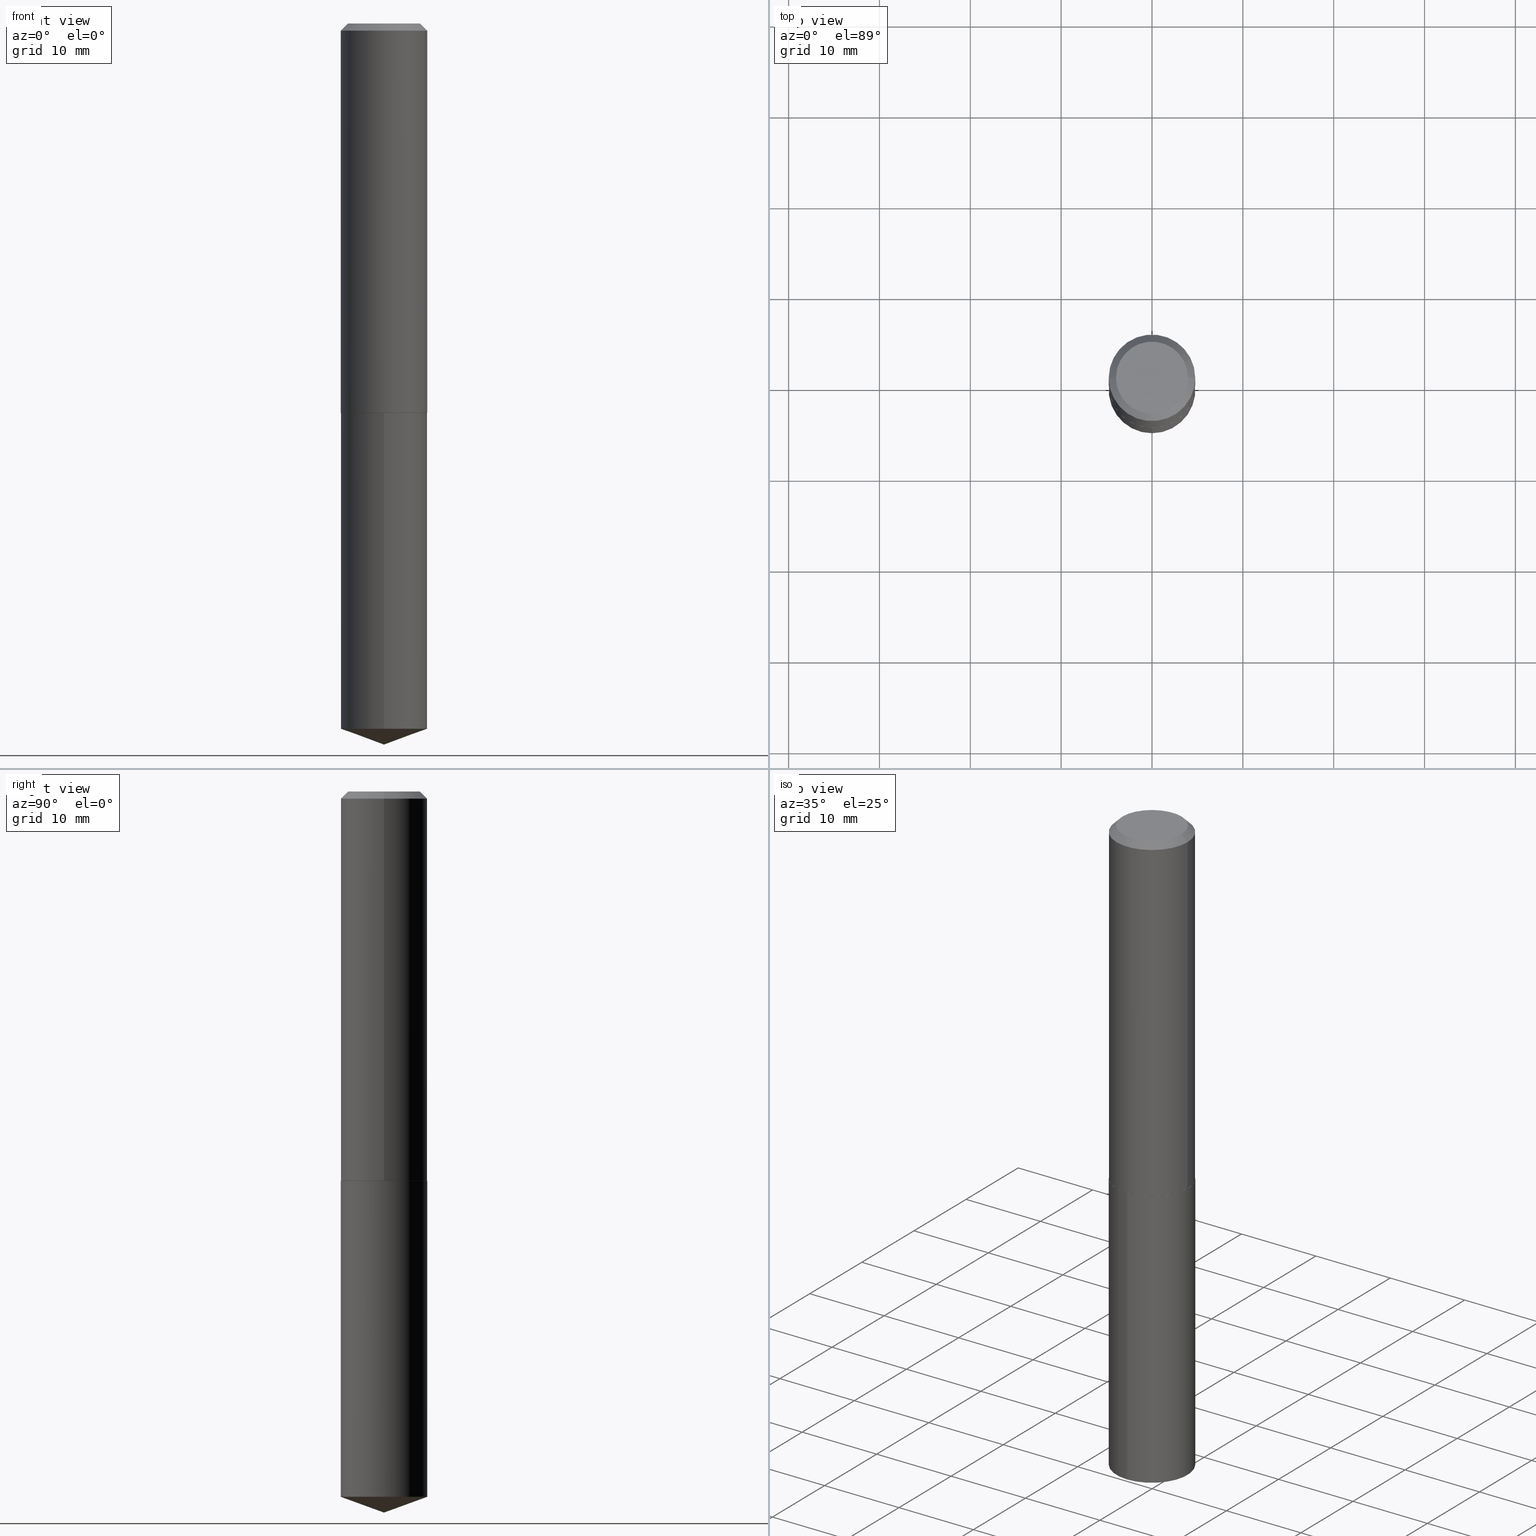
[diagram: canonical four-view strip — front | top / right | iso, engineering-drawing reading convention]
A machine part, canonical four-view strip (front | top / right | iso — engineering-drawing reading convention). The complete STEP part file that produces these views, byte-faithful:
ISO-10303-21;
HEADER;
FILE_DESCRIPTION (( 'STEP AP203' ),
    '1' );
FILE_NAME ('56156.STEP',
    '2024-04-22T20:48:24',
    ( '' ),
    ( '' ),
    'SwSTEP 2.0',
    'SolidWorks 2023',
    '' );
FILE_SCHEMA (( 'CONFIG_CONTROL_DESIGN' ));
ENDSEC;

DATA;
#1 = CARTESIAN_POINT ( 'NONE',  ( 7.642819744381336076E-29, -1.090984397979521079E-14, -3.125000000000000000 ) ) ;
#2 = EDGE_LOOP ( 'NONE', ( #171, #67, #100, #281 ) ) ;
#3 = DIRECTION ( 'NONE',  ( 6.676917655467972862E-15, 0.9396926207859103153, 0.3420201433256634393 ) ) ;
#4 = CIRCLE ( 'NONE', #133, 0.1875000000000002498 ) ;
#5 = ORIENTED_EDGE ( 'NONE', *, *, #373, .T. ) ;
#6 = APPLICATION_CONTEXT ( 'configuration controlled 3d designs of mechanical parts and assemblies' ) ;
#7 = DIRECTION ( 'NONE',  ( 1.000000000000000000, -6.982962677686265922E-15, 0.000000000000000000 ) ) ;
#8 = FACE_OUTER_BOUND ( 'NONE', #275, .T. ) ;
#9 = ORIENTED_EDGE ( 'NONE', *, *, #45, .T. ) ;
#10 = CONICAL_SURFACE ( 'NONE', #39, 108.1684023407338913, 1.221730476396032827 ) ;
#11 = PERSON_AND_ORGANIZATION_ROLE ( 'design_supplier' ) ;
#12 = VERTEX_POINT ( 'NONE', #233 ) ;
#13 = DATE_AND_TIME ( #228, #372 ) ;
#14 = LINE ( 'NONE', #19, #235 ) ;
#15 = EDGE_LOOP ( 'NONE', ( #181, #217, #43 ) ) ;
#16 = AXIS2_PLACEMENT_3D ( 'NONE', #124, #211, #327 ) ;
#17 = APPROVAL ( #145, 'UNSPECIFIED' ) ;
#18 = PERSON ( 'UNSPECIFIED', 'UNSPECIFIED', 'UNSPECIFIED', ('UNSPECIFIED'), ('UNSPECIFIED'), ('UNSPECIFIED') ) ;
#19 = CARTESIAN_POINT ( 'NONE',  ( 0.1875000000000000278, -1.395452166421011466E-15, -0.03125000000000022204 ) ) ;
#20 = ORIENTED_EDGE ( 'NONE', *, *, #163, .T. ) ;
#21 = PERSON_AND_ORGANIZATION ( #18, #57 ) ;
#22 = CYLINDRICAL_SURFACE ( 'NONE', #319, 0.1875000000000000278 ) ;
#23 = DATE_TIME_ROLE ( 'classification_date' ) ;
#24 = DIRECTION ( 'NONE',  ( -2.445700127513827662E-29, 3.491150073534467548E-15, 1.000000000000000000 ) ) ;
#25 = AXIS2_PLACEMENT_3D ( 'NONE', #278, #192, #363 ) ;
#26 = LINE ( 'NONE', #154, #294 ) ;
#27 = CARTESIAN_POINT ( 'NONE',  ( 4.126728610437419128E-29, -5.891874759297809625E-15, -1.687500000000000444 ) ) ;
#28 = PERSON_AND_ORGANIZATION ( #18, #57 ) ;
#29 = DIRECTION ( 'NONE',  ( 1.000000000000000000, -6.982962677686266711E-15, 4.876166487936958658E-29 ) ) ;
#30 = CIRCLE ( 'NONE', #125, 0.1875000000000002498 ) ;
#31 = DIRECTION ( 'NONE',  ( 0.7071067811863543939, -2.468850131080234027E-15, 0.7071067811867406405 ) ) ;
#32 = ADVANCED_FACE ( 'NONE', ( #325 ), #354, .T. ) ;
#33 = CARTESIAN_POINT ( 'NONE',  ( -1.309305502066100264E-15, -0.1875000000000106581, -3.056755581075087047 ) ) ;
#34 = EDGE_LOOP ( 'NONE', ( #258, #260, #139 ) ) ;
#35 = PRODUCT_RELATED_PRODUCT_CATEGORY ( 'detail', '', ( #49 ) ) ;
#36 = FACE_OUTER_BOUND ( 'NONE', #15, .T. ) ;
#37 = CLOSED_SHELL ( 'NONE', ( #279, #32, #205, #300, #345, #53, #63, #59 ) ) ;
#38 = LINE ( 'NONE', #93, #191 ) ;
#39 = AXIS2_PLACEMENT_3D ( 'NONE', #222, #195, #160 ) ;
#40 = CARTESIAN_POINT ( 'NONE',  ( -1.309305502066133790E-15, -0.1875000000000059119, -1.687499999999999778 ) ) ;
#41 = EDGE_LOOP ( 'NONE', ( #80, #20, #343, #287 ) ) ;
#42 = PERSON_AND_ORGANIZATION ( #18, #57 ) ;
#43 = ORIENTED_EDGE ( 'NONE', *, *, #285, .F. ) ;
#44 = APPROVAL_PERSON_ORGANIZATION ( #21, #376, #208 ) ;
#45 = EDGE_CURVE ( 'NONE', #114, #337, #293, .T. ) ;
#46 =( LENGTH_UNIT ( ) NAMED_UNIT ( * ) SI_UNIT ( $, .METRE. ) );
#47 = CC_DESIGN_PERSON_AND_ORGANIZATION_ASSIGNMENT ( #286, #11, ( #307 ) ) ;
#48 = VERTEX_POINT ( 'NONE', #156 ) ;
#49 = PRODUCT ( '56156', '56156', '', ( #262 ) ) ;
#50 = DATE_TIME_ROLE ( 'creation_date' ) ;
#51 = EDGE_LOOP ( 'NONE', ( #94, #378 ) ) ;
#52 = ORIENTED_EDGE ( 'NONE', *, *, #379, .T. ) ;
#53 = ADVANCED_FACE ( 'NONE', ( #386 ), #91, .T. ) ;
#54 = DIRECTION ( 'NONE',  ( 2.445468806185136597E-29, -3.491481338843145583E-15, -1.000000000000000000 ) ) ;
#55 = DIRECTION ( 'NONE',  ( -1.000000000000000000, 6.982962677686265922E-15, -4.876176775795935793E-29 ) ) ;
#56 = AXIS2_PLACEMENT_3D ( 'NONE', #292, #54, #355 ) ;
#57 = ORGANIZATION ( 'UNSPECIFIED', 'UNSPECIFIED', '' ) ;
#58 = APPROVAL_PERSON_ORGANIZATION ( #341, #17, #315 ) ;
#59 = ADVANCED_FACE ( 'NONE', ( #349 ), #236, .F. ) ;
#60 = DIRECTION ( 'NONE',  ( -2.445468806185136597E-29, 3.491481338843145583E-15, 1.000000000000000000 ) ) ;
#61 = CALENDAR_DATE ( 2024, 22, 4 ) ;
#62 = DIRECTION ( 'NONE',  ( -6.982962677686265922E-15, -1.000000000000000000, 2.913971193241880372E-15 ) ) ;
#63 = ADVANCED_FACE ( 'NONE', ( #384 ), #112, .T. ) ;
#64 = DIRECTION ( 'NONE',  ( -6.561838499445205585E-15, -0.9396926207859079838, 0.3420201433256699897 ) ) ;
#65 = EDGE_CURVE ( 'NONE', #224, #131, #119, .T. ) ;
#66 = CARTESIAN_POINT ( 'NONE',  ( 0.1875000000000001110, -1.309305502066175797E-15, 9.142831454617385217E-30 ) ) ;
#67 = ORIENTED_EDGE ( 'NONE', *, *, #122, .T. ) ;
#68 = FACE_OUTER_BOUND ( 'NONE', #34, .T. ) ;
#69 = CARTESIAN_POINT ( 'NONE',  ( -0.1870000000000003604, -4.560510616252309896E-15, -1.687500000000000444 ) ) ;
#70 = ORIENTED_EDGE ( 'NONE', *, *, #117, .F. ) ;
#71 = VECTOR ( 'NONE', #271, 39.37007874015748143 ) ;
#72 = CARTESIAN_POINT ( 'NONE',  ( 7.642090019328606165E-31, -1.091087918388490760E-16, -0.03125000000000022204 ) ) ;
#73 = EDGE_LOOP ( 'NONE', ( #137, #250, #116, #5 ) ) ;
#74 = COORDINATED_UNIVERSAL_TIME_OFFSET ( 5, 0, .BEHIND. ) ;
#75 =( NAMED_UNIT ( * ) PLANE_ANGLE_UNIT ( ) SI_UNIT ( $, .RADIAN. ) );
#76 = SECURITY_CLASSIFICATION ( '', '', #368 ) ;
#77 = ADVANCED_BREP_SHAPE_REPRESENTATION ( '56156', ( #335, #342, #277 ), #265 ) ;
#78 = CC_DESIGN_PERSON_AND_ORGANIZATION_ASSIGNMENT ( #42, #173, ( #307 ) ) ;
#79 = ORIENTED_EDGE ( 'NONE', *, *, #213, .F. ) ;
#80 = ORIENTED_EDGE ( 'NONE', *, *, #237, .T. ) ;
#81 = AXIS2_PLACEMENT_3D ( 'NONE', #97, #244, #302 ) ;
#82 = SHAPE_DEFINITION_REPRESENTATION ( #143, #77 ) ;
#83 = CARTESIAN_POINT ( 'NONE',  ( 0.1562500000000000000, -1.233702489286406538E-15, 9.552245033430668582E-19 ) ) ;
#84 = PLANE ( 'NONE',  #306 ) ;
#85 = PERSON_AND_ORGANIZATION_ROLE ( 'classification_officer' ) ;
#86 = LINE ( 'NONE', #214, #71 ) ;
#87 = CIRCLE ( 'NONE', #371, 0.1870000000000003604 ) ;
#88 = VECTOR ( 'NONE', #64, 39.37007874015748854 ) ;
#89 = CC_DESIGN_PERSON_AND_ORGANIZATION_ASSIGNMENT ( #207, #111, ( #49 ) ) ;
#90 = DATE_AND_TIME ( #61, #153 ) ;
#91 = CYLINDRICAL_SURFACE ( 'NONE', #284, 0.1875000000000001110 ) ;
#92 = CARTESIAN_POINT ( 'NONE',  ( 4.126728610437418568E-29, -5.891874759297808836E-15, -1.687500000000000222 ) ) ;
#93 = CARTESIAN_POINT ( 'NONE',  ( -0.1875000000000000278, 1.200196710227325908E-15, -0.03125000000000022204 ) ) ;
#94 = ORIENTED_EDGE ( 'NONE', *, *, #135, .T. ) ;
#95 = AXIS2_PLACEMENT_3D ( 'NONE', #162, #360, #99 ) ;
#96 = LOCAL_TIME ( 16, 48, 24.00000000000000000, #385 ) ;
#97 = CARTESIAN_POINT ( 'NONE',  ( 7.475517159671779799E-29, -1.067215148185558012E-14, -3.056755581075087491 ) ) ;
#98 = ORIENTED_EDGE ( 'NONE', *, *, #333, .T. ) ;
#99 = DIRECTION ( 'NONE',  ( -6.982962677686265922E-15, -1.000000000000000000, 3.475157955500706409E-15 ) ) ;
#100 = ORIENTED_EDGE ( 'NONE', *, *, #237, .F. ) ;
#101 = EDGE_CURVE ( 'NONE', #109, #198, #87, .T. ) ;
#102 = DIRECTION ( 'NONE',  ( 1.000000000000000000, -6.982962677686266711E-15, 4.876166487936958658E-29 ) ) ;
#103 = DIRECTION ( 'NONE',  ( -2.445468806185136597E-29, 3.491481338843145583E-15, 1.000000000000000000 ) ) ;
#104 = ORIENTED_EDGE ( 'NONE', *, *, #311, .T. ) ;
#105 = COORDINATED_UNIVERSAL_TIME_OFFSET ( 5, 0, .BEHIND. ) ;
#106 = EDGE_LOOP ( 'NONE', ( #309, #52, #344, #79 ) ) ;
#107 = ADVANCED_FACE ( 'NONE', ( #296 ), #84, .F. ) ;
#108 =( NAMED_UNIT ( * ) SI_UNIT ( $, .STERADIAN. ) SOLID_ANGLE_UNIT ( ) );
#109 = VERTEX_POINT ( 'NONE', #298 ) ;
#110 = PRODUCT_DEFINITION ( 'UNKNOWN', '', #307, #196 ) ;
#111 = PERSON_AND_ORGANIZATION_ROLE ( 'design_owner' ) ;
#112 = CONICAL_SURFACE ( 'NONE', #56, 0.1875000000000000278, 0.7853981633974449483 ) ;
#113 = APPROVAL_DATE_TIME ( #256, #167 ) ;
#114 = VERTEX_POINT ( 'NONE', #83 ) ;
#115 = PERSON_AND_ORGANIZATION ( #18, #57 ) ;
#116 = ORIENTED_EDGE ( 'NONE', *, *, #213, .T. ) ;
#117 = EDGE_CURVE ( 'NONE', #198, #109, #351, .T. ) ;
#118 = CARTESIAN_POINT ( 'NONE',  ( 4.126728610437418568E-29, -5.891874759297808836E-15, -1.687500000000000222 ) ) ;
#119 = CIRCLE ( 'NONE', #164, 0.1875000000000000278 ) ;
#120 = DATE_AND_TIME ( #388, #96 ) ;
#121 = CARTESIAN_POINT ( 'NONE',  ( 4.126728610437418568E-29, -5.891874759297808836E-15, -1.687500000000000222 ) ) ;
#122 = EDGE_CURVE ( 'NONE', #198, #48, #86, .T. ) ;
#123 = CARTESIAN_POINT ( 'NONE',  ( -2.335971725809281832E-47, 3.335148527799649409E-33, 9.552245033349382783E-19 ) ) ;
#124 = CARTESIAN_POINT ( 'NONE',  ( 4.126728610437418568E-29, -5.891874759297808836E-15, -1.687500000000000222 ) ) ;
#125 = AXIS2_PLACEMENT_3D ( 'NONE', #136, #249, #332 ) ;
#126 = DIRECTION ( 'NONE',  ( -2.445700127513827662E-29, 3.491150073534467548E-15, 1.000000000000000000 ) ) ;
#127 = EDGE_CURVE ( 'NONE', #12, #375, #329, .T. ) ;
#128 = CARTESIAN_POINT ( 'NONE',  ( 0.1875000000000002498, -7.199434520694564708E-15, -1.687000000000000277 ) ) ;
#129 = ORIENTED_EDGE ( 'NONE', *, *, #290, .T. ) ;
#130 = CARTESIAN_POINT ( 'NONE',  ( 1.332267629550228869E-15, 0.1874999999999941158, -1.687500000000000888 ) ) ;
#131 = VERTEX_POINT ( 'NONE', #326 ) ;
#132 = AXIS2_PLACEMENT_3D ( 'NONE', #210, #267, #389 ) ;
#133 = AXIS2_PLACEMENT_3D ( 'NONE', #334, #223, #197 ) ;
#134 = DIRECTION ( 'NONE',  ( 1.000000000000000000, -6.982962677686269077E-15, 0.000000000000000000 ) ) ;
#135 = EDGE_CURVE ( 'NONE', #375, #12, #172, .T. ) ;
#136 = CARTESIAN_POINT ( 'NONE',  ( 4.125505876034326327E-29, -5.890129018628388122E-15, -1.687000000000000277 ) ) ;
#137 = ORIENTED_EDGE ( 'NONE', *, *, #379, .F. ) ;
#138 = CARTESIAN_POINT ( 'NONE',  ( 4.125505876034326327E-29, -5.890129018628388122E-15, -1.687000000000000277 ) ) ;
#139 = ORIENTED_EDGE ( 'NONE', *, *, #65, .F. ) ;
#140 = CIRCLE ( 'NONE', #81, 0.1875000000000000278 ) ;
#141 = APPROVAL_ROLE ( '' ) ;
#142 = ORIENTED_EDGE ( 'NONE', *, *, #127, .F. ) ;
#143 = PRODUCT_DEFINITION_SHAPE ( 'NONE', 'NONE',  #110 ) ;
#144 = APPROVAL_DATE_TIME ( #201, #17 ) ;
#145 = APPROVAL_STATUS ( 'not_yet_approved' ) ;
#146 = AXIS2_PLACEMENT_3D ( 'NONE', #123, #60, #29 ) ;
#147 = LENGTH_MEASURE_WITH_UNIT ( LENGTH_MEASURE( 0.02539999999999999897 ), #46 );
#148 = VECTOR ( 'NONE', #168, 39.37007874015748143 ) ;
#149 = AXIS2_PLACEMENT_3D ( 'NONE', #336, #301, #134 ) ;
#150 =( CONVERSION_BASED_UNIT ( 'INCH', #147 ) LENGTH_UNIT ( ) NAMED_UNIT ( #221 ) );
#151 = DIRECTION ( 'NONE',  ( -2.445700127513827662E-29, 3.491150073534467548E-15, 1.000000000000000000 ) ) ;
#152 = CARTESIAN_POINT ( 'NONE',  ( 4.126728610437418568E-29, -5.891874759297808836E-15, -1.687500000000000222 ) ) ;
#153 = LOCAL_TIME ( 16, 48, 24.00000000000000000, #185 ) ;
#154 = CARTESIAN_POINT ( 'NONE',  ( -0.1875000000000001110, 1.332267629550188637E-15, -9.223003294227953596E-30 ) ) ;
#155 = CC_DESIGN_PERSON_AND_ORGANIZATION_ASSIGNMENT ( #28, #85, ( #76 ) ) ;
#156 = CARTESIAN_POINT ( 'NONE',  ( -0.1875000000000002498, -4.557861389078198695E-15, -1.687000000000000277 ) ) ;
#157 = DIRECTION ( 'NONE',  ( -2.445700127513827662E-29, 3.491150073534467548E-15, 1.000000000000000000 ) ) ;
#158 = APPROVAL_PERSON_ORGANIZATION ( #115, #167, #141 ) ;
#159 = CARTESIAN_POINT ( 'NONE',  ( -0.1875000000000000278, -1.667351275683429579E-15, -0.03125000000000022204 ) ) ;
#160 = DIRECTION ( 'NONE',  ( -6.982962677686265922E-15, -1.000000000000000000, 3.475157955500706409E-15 ) ) ;
#161 = ORIENTED_EDGE ( 'NONE', *, *, #117, .T. ) ;
#162 = CARTESIAN_POINT ( 'NONE',  ( -8.864498405129403874E-28, 1.265364502987549579E-13, 36.24507874015748143 ) ) ;
#163 = EDGE_CURVE ( 'NONE', #48, #283, #26, .T. ) ;
#164 = AXIS2_PLACEMENT_3D ( 'NONE', #297, #157, #239 ) ;
#165 = CC_DESIGN_APPROVAL ( #167, ( #110 ) ) ;
#166 = CARTESIAN_POINT ( 'NONE',  ( 7.642090019328606165E-31, -1.091087918388490760E-16, -0.03125000000000022204 ) ) ;
#167 = APPROVAL ( #288, 'UNSPECIFIED' ) ;
#168 = DIRECTION ( 'NONE',  ( -2.445700127513827662E-29, 3.491150073534467548E-15, 1.000000000000000000 ) ) ;
#169 = EDGE_LOOP ( 'NONE', ( #362, #253, #98, #142 ) ) ;
#170 = DIRECTION ( 'NONE',  ( -2.445468806185136597E-29, 3.491481338843145583E-15, 1.000000000000000000 ) ) ;
#171 = ORIENTED_EDGE ( 'NONE', *, *, #101, .T. ) ;
#172 = CIRCLE ( 'NONE', #272, 0.1875000000000000278 ) ;
#173 = PERSON_AND_ORGANIZATION_ROLE ( 'creator' ) ;
#174 = ORIENTED_EDGE ( 'NONE', *, *, #101, .F. ) ;
#175 = CARTESIAN_POINT ( 'NONE',  ( 0.000000000000000000, 0.000000000000000000, 0.000000000000000000 ) ) ;
#176 = ORIENTED_EDGE ( 'NONE', *, *, #333, .F. ) ;
#177 = DIRECTION ( 'NONE',  ( 1.000000000000000000, 0.000000000000000000, 0.000000000000000000 ) ) ;
#178 = ORIENTED_EDGE ( 'NONE', *, *, #135, .F. ) ;
#179 = ADVANCED_FACE ( 'NONE', ( #380 ), #212, .T. ) ;
#180 = AXIS2_PLACEMENT_3D ( 'NONE', #166, #220, #273 ) ;
#181 = ORIENTED_EDGE ( 'NONE', *, *, #203, .F. ) ;
#182 = EDGE_CURVE ( 'NONE', #316, #224, #189, .T. ) ;
#183 = APPROVAL_STATUS ( 'not_yet_approved' ) ;
#184 = DIRECTION ( 'NONE',  ( -6.982962677686265922E-15, -1.000000000000000000, 2.913971193241880372E-15 ) ) ;
#185 = COORDINATED_UNIVERSAL_TIME_OFFSET ( 5, 0, .BEHIND. ) ;
#186 = DIRECTION ( 'NONE',  ( -2.445468806185136597E-29, 3.491481338843145583E-15, 1.000000000000000000 ) ) ;
#187 = VECTOR ( 'NONE', #190, 39.37007874015748143 ) ;
#188 = CARTESIAN_POINT ( 'NONE',  ( -1.167985862904640916E-47, 1.667574263899824705E-33, 4.776122516674691392E-19 ) ) ;
#189 = LINE ( 'NONE', #242, #88 ) ;
#190 = DIRECTION ( 'NONE',  ( -2.445700127513827662E-29, 3.491150073534467548E-15, 1.000000000000000000 ) ) ;
#191 = VECTOR ( 'NONE', #251, 39.37007874015748143 ) ;
#192 = DIRECTION ( 'NONE',  ( -2.438088387897960049E-29, 3.491481338843145188E-15, 1.000000000000000000 ) ) ;
#193 = ORIENTED_EDGE ( 'NONE', *, *, #65, .T. ) ;
#194 = ADVANCED_FACE ( 'NONE', ( #291 ), #22, .T. ) ;
#195 = DIRECTION ( 'NONE',  ( -2.445700127513827662E-29, 3.491150073534467548E-15, 1.000000000000000000 ) ) ;
#196 = DESIGN_CONTEXT ( 'detailed design', #232, 'design' ) ;
#197 = DIRECTION ( 'NONE',  ( 1.000000000000000000, -6.982962677686269077E-15, 0.000000000000000000 ) ) ;
#198 = VERTEX_POINT ( 'NONE', #69 ) ;
#199 = VECTOR ( 'NONE', #3, 39.37007874015748143 ) ;
#200 = CARTESIAN_POINT ( 'NONE',  ( 7.642812898480711865E-29, -1.090984397979521237E-14, -3.125000000000000000 ) ) ;
#201 = DATE_AND_TIME ( #259, #219 ) ;
#202 = ORIENTED_EDGE ( 'NONE', *, *, #122, .F. ) ;
#203 = EDGE_CURVE ( 'NONE', #316, #131, #243, .T. ) ;
#204 = PERSON_AND_ORGANIZATION_ROLE ( 'creator' ) ;
#205 = ADVANCED_FACE ( 'NONE', ( #308 ), #338, .T. ) ;
#206 = CALENDAR_DATE ( 2024, 22, 4 ) ;
#207 = PERSON_AND_ORGANIZATION ( #18, #57 ) ;
#208 = APPROVAL_ROLE ( '' ) ;
#209 = EDGE_LOOP ( 'NONE', ( #263, #129, #245, #314 ) ) ;
#210 = CARTESIAN_POINT ( 'NONE',  ( 0.000000000000000000, 0.000000000000000000, 0.000000000000000000 ) ) ;
#211 = DIRECTION ( 'NONE',  ( -2.445700127513827662E-29, 3.491150073534467548E-15, 1.000000000000000000 ) ) ;
#212 = CYLINDRICAL_SURFACE ( 'NONE', #352, 0.1875000000000000278 ) ;
#213 = EDGE_CURVE ( 'NONE', #337, #283, #38, .T. ) ;
#214 = CARTESIAN_POINT ( 'NONE',  ( -0.1875000000000002498, -4.557861389078198695E-15, -1.687000000000000277 ) ) ;
#215 = CARTESIAN_POINT ( 'NONE',  ( 4.126728610437419128E-29, -5.891874759297809625E-15, -1.687500000000000444 ) ) ;
#216 = LINE ( 'NONE', #130, #187 ) ;
#217 = ORIENTED_EDGE ( 'NONE', *, *, #182, .T. ) ;
#218 = CIRCLE ( 'NONE', #353, 0.1562500000000000000 ) ;
#219 = LOCAL_TIME ( 16, 48, 24.00000000000000000, #74 ) ;
#220 = DIRECTION ( 'NONE',  ( 2.445468806185136597E-29, -3.491481338843145583E-15, -1.000000000000000000 ) ) ;
#221 = DIMENSIONAL_EXPONENTS ( 1.000000000000000000, 0.000000000000000000, 0.000000000000000000, 0.000000000000000000, 0.000000000000000000, 0.000000000000000000, 0.000000000000000000 ) ;
#222 = CARTESIAN_POINT ( 'NONE',  ( -8.864498405129403874E-28, 1.265364502987549579E-13, 36.24507874015748143 ) ) ;
#223 = DIRECTION ( 'NONE',  ( -2.445468806185136597E-29, 3.491481338843145583E-15, 1.000000000000000000 ) ) ;
#224 = VERTEX_POINT ( 'NONE', #33 ) ;
#225 = AXIS2_PLACEMENT_3D ( 'NONE', #188, #269, #55 ) ;
#226 = CIRCLE ( 'NONE', #346, 0.1875000000000000278 ) ;
#227 = DIRECTION ( 'NONE',  ( 1.000000000000000000, -6.982962677686269077E-15, 0.000000000000000000 ) ) ;
#228 = CALENDAR_DATE ( 2024, 22, 4 ) ;
#229 = CC_DESIGN_PERSON_AND_ORGANIZATION_ASSIGNMENT ( #234, #204, ( #110 ) ) ;
#230 = DIRECTION ( 'NONE',  ( 0.7071067811865451302, -7.319954787623248157E-15, -0.7071067811865499042 ) ) ;
#231 = VECTOR ( 'NONE', #31, 39.37007874015748143 ) ;
#232 = APPLICATION_CONTEXT ( 'configuration controlled 3d designs of mechanical parts and assemblies' ) ;
#233 = CARTESIAN_POINT ( 'NONE',  ( 1.332267629550262396E-15, 0.1874999999999940603, -1.687500000000000888 ) ) ;
#234 = PERSON_AND_ORGANIZATION ( #18, #57 ) ;
#235 = VECTOR ( 'NONE', #230, 39.37007874015748143 ) ;
#236 = PLANE ( 'NONE',  #225 ) ;
#237 = EDGE_CURVE ( 'NONE', #340, #48, #30, .T. ) ;
#238 = DIRECTION ( 'NONE',  ( -2.445468806185136597E-29, 3.491481338843145583E-15, 1.000000000000000000 ) ) ;
#239 = DIRECTION ( 'NONE',  ( -6.982962677686265922E-15, -1.000000000000000000, 2.913971193241880372E-15 ) ) ;
#240 = DIRECTION ( 'NONE',  ( 1.000000000000000000, -6.982962677686267499E-15, 0.000000000000000000 ) ) ;
#241 = AXIS2_PLACEMENT_3D ( 'NONE', #138, #103, #227 ) ;
#242 = CARTESIAN_POINT ( 'NONE',  ( 7.642032188996379379E-29, -1.091096200021199980E-14, -3.125000000000000000 ) ) ;
#243 = LINE ( 'NONE', #1, #199 ) ;
#244 = DIRECTION ( 'NONE',  ( -2.445700127513827662E-29, 3.491150073534467548E-15, 1.000000000000000000 ) ) ;
#245 = ORIENTED_EDGE ( 'NONE', *, *, #367, .T. ) ;
#246 = CC_DESIGN_DATE_AND_TIME_ASSIGNMENT ( #120, #23, ( #76 ) ) ;
#247 = CONICAL_SURFACE ( 'NONE', #241, 0.1875000000000002498, 0.7853981633971751641 ) ;
#248 = UNCERTAINTY_MEASURE_WITH_UNIT (LENGTH_MEASURE( 1.000000000000000082E-05 ), #150, 'distance_accuracy_value', 'NONE');
#249 = DIRECTION ( 'NONE',  ( -2.445468806185136597E-29, 3.491481338843145583E-15, 1.000000000000000000 ) ) ;
#250 = ORIENTED_EDGE ( 'NONE', *, *, #311, .F. ) ;
#251 = DIRECTION ( 'NONE',  ( -0.7071067811865451302, 2.468850131082231817E-15, -0.7071067811865499042 ) ) ;
#252 = FACE_OUTER_BOUND ( 'NONE', #106, .T. ) ;
#253 = ORIENTED_EDGE ( 'NONE', *, *, #285, .T. ) ;
#254 = AXIS2_PLACEMENT_3D ( 'NONE', #72, #303, #7 ) ;
#255 = CC_DESIGN_SECURITY_CLASSIFICATION ( #76, ( #307 ) ) ;
#256 = DATE_AND_TIME ( #206, #324 ) ;
#257 = APPLICATION_PROTOCOL_DEFINITION ( 'international standard', 'config_control_design', 1994, #232 ) ;
#258 = ORIENTED_EDGE ( 'NONE', *, *, #182, .F. ) ;
#259 = CALENDAR_DATE ( 2024, 22, 4 ) ;
#260 = ORIENTED_EDGE ( 'NONE', *, *, #203, .T. ) ;
#261 = APPLICATION_PROTOCOL_DEFINITION ( 'international standard', 'config_control_design', 1994, #6 ) ;
#262 = MECHANICAL_CONTEXT ( 'NONE', #6, 'mechanical' ) ;
#263 = ORIENTED_EDGE ( 'NONE', *, *, #163, .F. ) ;
#264 = CARTESIAN_POINT ( 'NONE',  ( 0.000000000000000000, 0.000000000000000000, 0.000000000000000000 ) ) ;
#265 =( GEOMETRIC_REPRESENTATION_CONTEXT ( 3 ) GLOBAL_UNCERTAINTY_ASSIGNED_CONTEXT ( ( #248 ) ) GLOBAL_UNIT_ASSIGNED_CONTEXT ( ( #150, #75, #108 ) ) REPRESENTATION_CONTEXT ( 'NONE', 'WORKASPACE' ) );
#266 = DIRECTION ( 'NONE',  ( -2.445468806185136877E-29, 3.491481338843145188E-15, 1.000000000000000000 ) ) ;
#267 = DIRECTION ( 'NONE',  ( -2.445468806185136597E-29, 3.491481338843145583E-15, 1.000000000000000000 ) ) ;
#268 = ADVANCED_FACE ( 'NONE', ( #68 ), #365, .T. ) ;
#269 = DIRECTION ( 'NONE',  ( 2.438088387897960049E-29, -3.491481338843145188E-15, -1.000000000000000000 ) ) ;
#270 = AXIS2_PLACEMENT_3D ( 'NONE', #215, #238, #240 ) ;
#271 = DIRECTION ( 'NONE',  ( -0.7071067811863543939, 7.493145998869656807E-15, 0.7071067811867406405 ) ) ;
#272 = AXIS2_PLACEMENT_3D ( 'NONE', #152, #126, #184 ) ;
#273 = DIRECTION ( 'NONE',  ( -1.000000000000000000, 6.982962677686265922E-15, 0.000000000000000000 ) ) ;
#274 = LINE ( 'NONE', #339, #231 ) ;
#275 = EDGE_LOOP ( 'NONE', ( #202, #161, #364, #331 ) ) ;
#276 = CARTESIAN_POINT ( 'NONE',  ( -2.335971725809281832E-47, 3.335148527799649409E-33, 9.552245033349382783E-19 ) ) ;
#277 = AXIS2_PLACEMENT_3D ( 'NONE', #175, #289, #177 ) ;
#278 = CARTESIAN_POINT ( 'NONE',  ( 2.405262702404397112E-29, -8.357111919355798316E-15, -1.687500000000000444 ) ) ;
#279 = ADVANCED_FACE ( 'NONE', ( #252 ), #312, .T. ) ;
#280 = CARTESIAN_POINT ( 'NONE',  ( -0.1562500000000000000, 1.145642314307902541E-15, 9.552245033271172694E-19 ) ) ;
#281 = ORIENTED_EDGE ( 'NONE', *, *, #348, .F. ) ;
#282 = ADVANCED_FACE ( 'NONE', ( #36 ), #10, .T. ) ;
#283 = VERTEX_POINT ( 'NONE', #159 ) ;
#284 = AXIS2_PLACEMENT_3D ( 'NONE', #264, #320, #321 ) ;
#285 = EDGE_CURVE ( 'NONE', #131, #224, #140, .T. ) ;
#286 = PERSON_AND_ORGANIZATION ( #18, #57 ) ;
#287 = ORIENTED_EDGE ( 'NONE', *, *, #367, .F. ) ;
#288 = APPROVAL_STATUS ( 'not_yet_approved' ) ;
#289 = DIRECTION ( 'NONE',  ( 0.000000000000000000, 0.000000000000000000, 1.000000000000000000 ) ) ;
#290 = EDGE_CURVE ( 'NONE', #48, #340, #4, .T. ) ;
#291 = FACE_OUTER_BOUND ( 'NONE', #169, .T. ) ;
#292 = CARTESIAN_POINT ( 'NONE',  ( 7.642090019328606165E-31, -1.091087918388490760E-16, -0.03125000000000022204 ) ) ;
#293 = CIRCLE ( 'NONE', #146, 0.1562500000000000000 ) ;
#294 = VECTOR ( 'NONE', #266, 39.37007874015748143 ) ;
#295 = EDGE_CURVE ( 'NONE', #131, #12, #216, .T. ) ;
#296 = FACE_OUTER_BOUND ( 'NONE', #51, .T. ) ;
#297 = CARTESIAN_POINT ( 'NONE',  ( 7.475517159671779799E-29, -1.067215148185558012E-14, -3.056755581075087491 ) ) ;
#298 = CARTESIAN_POINT ( 'NONE',  ( 0.1870000000000003604, -7.197688780025143993E-15, -1.687500000000000444 ) ) ;
#299 = LINE ( 'NONE', #40, #148 ) ;
#300 = ADVANCED_FACE ( 'NONE', ( #357 ), #390, .F. ) ;
#301 = DIRECTION ( 'NONE',  ( -2.445468806185136597E-29, 3.491481338843145583E-15, 1.000000000000000000 ) ) ;
#302 = DIRECTION ( 'NONE',  ( -6.982962677686265922E-15, -1.000000000000000000, 2.913971193241880372E-15 ) ) ;
#303 = DIRECTION ( 'NONE',  ( -2.445468806185136597E-29, 3.491481338843145583E-15, 1.000000000000000000 ) ) ;
#304 = EDGE_CURVE ( 'NONE', #369, #283, #358, .T. ) ;
#305 = EDGE_LOOP ( 'NONE', ( #174, #70 ) ) ;
#306 = AXIS2_PLACEMENT_3D ( 'NONE', #121, #347, #382 ) ;
#307 = PRODUCT_DEFINITION_FORMATION_WITH_SPECIFIED_SOURCE ( 'ANY', '', #49, .NOT_KNOWN. ) ;
#308 = FACE_OUTER_BOUND ( 'NONE', #2, .T. ) ;
#309 = ORIENTED_EDGE ( 'NONE', *, *, #45, .F. ) ;
#310 = EDGE_LOOP ( 'NONE', ( #193, #318, #178, #176 ) ) ;
#311 = EDGE_CURVE ( 'NONE', #337, #114, #218, .T. ) ;
#312 = CONICAL_SURFACE ( 'NONE', #180, 0.1875000000000000278, 0.7853981633974449483 ) ;
#313 = DIRECTION ( 'NONE',  ( -2.445468806185136877E-29, 3.491481338843145188E-15, 1.000000000000000000 ) ) ;
#314 = ORIENTED_EDGE ( 'NONE', *, *, #373, .F. ) ;
#315 = APPROVAL_ROLE ( '' ) ;
#316 = VERTEX_POINT ( 'NONE', #200 ) ;
#317 = DIRECTION ( 'NONE',  ( 1.000000000000000000, -6.982962677686265922E-15, 0.000000000000000000 ) ) ;
#318 = ORIENTED_EDGE ( 'NONE', *, *, #295, .T. ) ;
#319 = AXIS2_PLACEMENT_3D ( 'NONE', #118, #151, #356 ) ;
#320 = DIRECTION ( 'NONE',  ( -2.445468806185136597E-29, 3.491481338843145583E-15, 1.000000000000000000 ) ) ;
#321 = DIRECTION ( 'NONE',  ( 1.000000000000000000, -6.982962677686266711E-15, 4.876176775795935793E-29 ) ) ;
#322 = CLOSED_SHELL ( 'NONE', ( #179, #268, #282, #194, #107 ) ) ;
#323 = CC_DESIGN_DATE_AND_TIME_ASSIGNMENT ( #13, #50, ( #110 ) ) ;
#324 = LOCAL_TIME ( 16, 48, 24.00000000000000000, #374 ) ;
#325 = FACE_OUTER_BOUND ( 'NONE', #41, .T. ) ;
#326 = CARTESIAN_POINT ( 'NONE',  ( 1.332267629550262396E-15, 0.1874999999999893141, -3.056755581075088379 ) ) ;
#327 = DIRECTION ( 'NONE',  ( -6.982962677686265922E-15, -1.000000000000000000, 2.913971193241880372E-15 ) ) ;
#328 = LINE ( 'NONE', #66, #387 ) ;
#329 = CIRCLE ( 'NONE', #16, 0.1875000000000000278 ) ;
#330 = CC_DESIGN_APPROVAL ( #376, ( #76 ) ) ;
#331 = ORIENTED_EDGE ( 'NONE', *, *, #290, .F. ) ;
#332 = DIRECTION ( 'NONE',  ( 1.000000000000000000, -6.982962677686269077E-15, 0.000000000000000000 ) ) ;
#333 = EDGE_CURVE ( 'NONE', #224, #375, #299, .T. ) ;
#334 = CARTESIAN_POINT ( 'NONE',  ( 4.125505876034326327E-29, -5.890129018628388122E-15, -1.687000000000000277 ) ) ;
#335 = MANIFOLD_SOLID_BREP ( 'Body-Move/Copy2[1]', #322 ) ;
#336 = CARTESIAN_POINT ( 'NONE',  ( 4.125505876034326327E-29, -5.890129018628388122E-15, -1.687000000000000277 ) ) ;
#337 = VERTEX_POINT ( 'NONE', #280 ) ;
#338 = CONICAL_SURFACE ( 'NONE', #149, 0.1875000000000002498, 0.7853981633971751641 ) ;
#339 = CARTESIAN_POINT ( 'NONE',  ( 0.1875000000000002498, -7.199434520694564708E-15, -1.687000000000000277 ) ) ;
#340 = VERTEX_POINT ( 'NONE', #128 ) ;
#341 = PERSON_AND_ORGANIZATION ( #18, #57 ) ;
#342 = MANIFOLD_SOLID_BREP ( 'Body-Move/Copy2[2]', #37 ) ;
#343 = ORIENTED_EDGE ( 'NONE', *, *, #304, .F. ) ;
#344 = ORIENTED_EDGE ( 'NONE', *, *, #304, .T. ) ;
#345 = ADVANCED_FACE ( 'NONE', ( #8 ), #247, .T. ) ;
#346 = AXIS2_PLACEMENT_3D ( 'NONE', #370, #170, #317 ) ;
#347 = DIRECTION ( 'NONE',  ( 2.445700127513827382E-29, -3.491150073534467548E-15, -1.000000000000000000 ) ) ;
#348 = EDGE_CURVE ( 'NONE', #109, #340, #274, .T. ) ;
#349 = FACE_OUTER_BOUND ( 'NONE', #359, .T. ) ;
#350 = DIRECTION ( 'NONE',  ( 1.000000000000000000, -6.982962677686267499E-15, 0.000000000000000000 ) ) ;
#351 = CIRCLE ( 'NONE', #270, 0.1870000000000003604 ) ;
#352 = AXIS2_PLACEMENT_3D ( 'NONE', #92, #24, #62 ) ;
#353 = AXIS2_PLACEMENT_3D ( 'NONE', #276, #361, #102 ) ;
#354 = CYLINDRICAL_SURFACE ( 'NONE', #132, 0.1875000000000001110 ) ;
#355 = DIRECTION ( 'NONE',  ( -1.000000000000000000, 6.982962677686265922E-15, 0.000000000000000000 ) ) ;
#356 = DIRECTION ( 'NONE',  ( -6.982962677686265922E-15, -1.000000000000000000, 2.913971193241880372E-15 ) ) ;
#357 = FACE_OUTER_BOUND ( 'NONE', #305, .T. ) ;
#358 = CIRCLE ( 'NONE', #254, 0.1875000000000000278 ) ;
#359 = EDGE_LOOP ( 'NONE', ( #104, #9 ) ) ;
#360 = DIRECTION ( 'NONE',  ( -2.445700127513827662E-29, 3.491150073534467548E-15, 1.000000000000000000 ) ) ;
#361 = DIRECTION ( 'NONE',  ( -2.445468806185136597E-29, 3.491481338843145583E-15, 1.000000000000000000 ) ) ;
#362 = ORIENTED_EDGE ( 'NONE', *, *, #295, .F. ) ;
#363 = DIRECTION ( 'NONE',  ( 1.000000000000000000, -6.982962677686265922E-15, 4.876176775795935793E-29 ) ) ;
#364 = ORIENTED_EDGE ( 'NONE', *, *, #348, .T. ) ;
#365 = CONICAL_SURFACE ( 'NONE', #95, 108.1684023407338913, 1.221730476396032827 ) ;
#366 = CARTESIAN_POINT ( 'NONE',  ( -1.309305502066133790E-15, -0.1875000000000059119, -1.687499999999999778 ) ) ;
#367 = EDGE_CURVE ( 'NONE', #340, #369, #328, .T. ) ;
#368 = SECURITY_CLASSIFICATION_LEVEL ( 'unclassified' ) ;
#369 = VERTEX_POINT ( 'NONE', #377 ) ;
#370 = CARTESIAN_POINT ( 'NONE',  ( 7.642090019328606165E-31, -1.091087918388490760E-16, -0.03125000000000022204 ) ) ;
#371 = AXIS2_PLACEMENT_3D ( 'NONE', #27, #186, #350 ) ;
#372 = LOCAL_TIME ( 16, 48, 24.00000000000000000, #105 ) ;
#373 = EDGE_CURVE ( 'NONE', #283, #369, #226, .T. ) ;
#374 = COORDINATED_UNIVERSAL_TIME_OFFSET ( 5, 0, .BEHIND. ) ;
#375 = VERTEX_POINT ( 'NONE', #366 ) ;
#376 = APPROVAL ( #183, 'UNSPECIFIED' ) ;
#377 = CARTESIAN_POINT ( 'NONE',  ( 0.1875000000000000278, -1.418414293905024109E-15, -0.03125000000000022204 ) ) ;
#378 = ORIENTED_EDGE ( 'NONE', *, *, #127, .T. ) ;
#379 = EDGE_CURVE ( 'NONE', #114, #369, #14, .T. ) ;
#380 = FACE_OUTER_BOUND ( 'NONE', #310, .T. ) ;
#381 = CC_DESIGN_APPROVAL ( #17, ( #307 ) ) ;
#382 = DIRECTION ( 'NONE',  ( 6.982962677686265922E-15, 1.000000000000000000, -3.491150073534467548E-15 ) ) ;
#383 = APPROVAL_DATE_TIME ( #90, #376 ) ;
#384 = FACE_OUTER_BOUND ( 'NONE', #73, .T. ) ;
#385 = COORDINATED_UNIVERSAL_TIME_OFFSET ( 5, 0, .BEHIND. ) ;
#386 = FACE_OUTER_BOUND ( 'NONE', #209, .T. ) ;
#387 = VECTOR ( 'NONE', #313, 39.37007874015748143 ) ;
#388 = CALENDAR_DATE ( 2024, 22, 4 ) ;
#389 = DIRECTION ( 'NONE',  ( 1.000000000000000000, -6.982962677686266711E-15, 4.876176775795935793E-29 ) ) ;
#390 = PLANE ( 'NONE',  #25 ) ;
ENDSEC;
END-ISO-10303-21;
